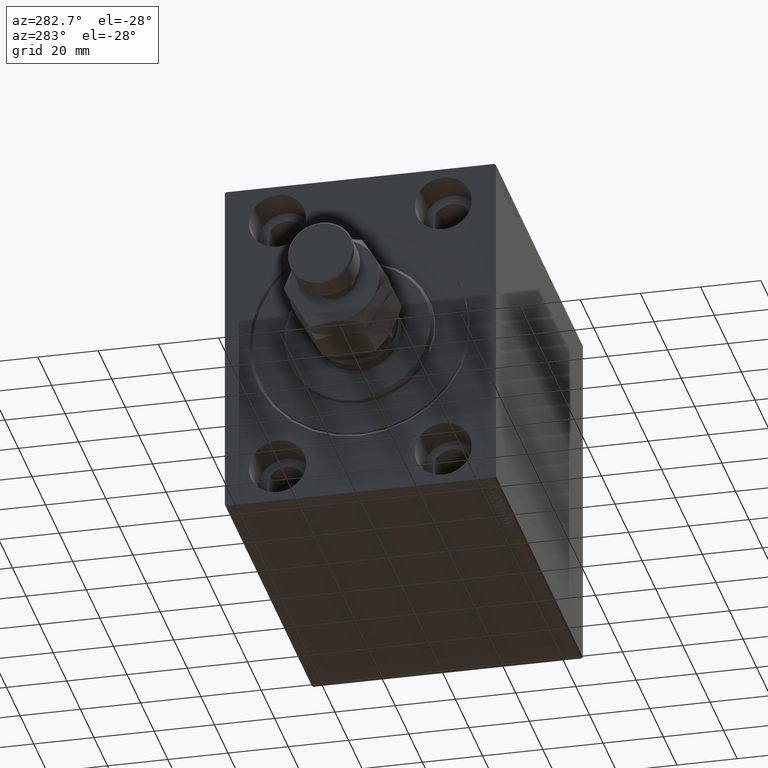
[diagram: clean part render]
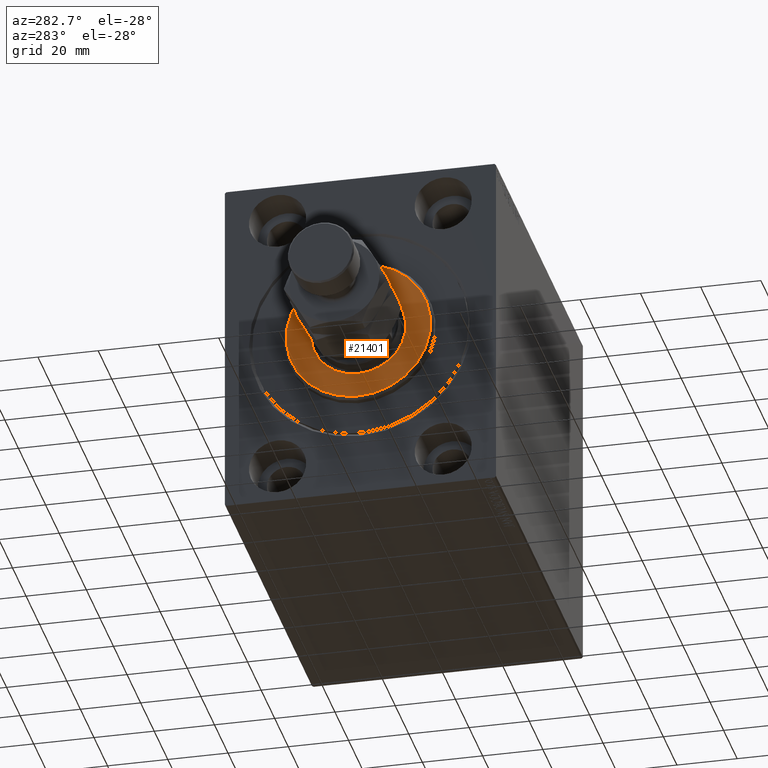
[diagram: same view with one face highlighted and labeled with its STEP entity id]
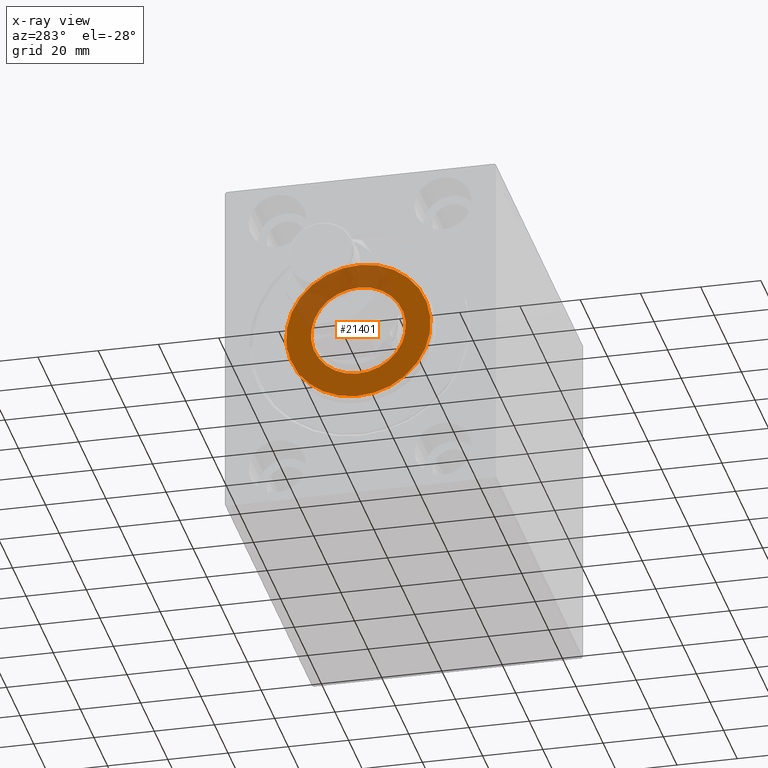
[diagram: x-ray of the same camera — body ghosted, the highlighted face saturated]
A machine part, auxiliary view. The second image highlights one B-rep face of the part: STEP entity #21401.
The next image is the same camera in x-ray: the body ghosted, the highlighted face saturated — about 29% of this face is hidden behind the body in this view.
In plain terms, the highlighted planar face has unit normal (-1, 0, 0).
Its self-contained STEP definition (entity closure, byte-faithful):
#455 = CARTESIAN_POINT ( 'NONE',  ( 3.000000000000000000, 3.000384657911015469E-15, -24.00000000000000711 ) ) ;
#3406 = DIRECTION ( 'NONE',  ( 1.000000000000000000, -0.000000000000000000, 0.000000000000000000 ) ) ;
#3465 = PLANE ( 'NONE',  #40771 ) ;
#4264 = VERTEX_POINT ( 'NONE', #5829 ) ;
#4680 = DIRECTION ( 'NONE',  ( 1.000000000000000000, -0.000000000000000000, 0.000000000000000000 ) ) ;
#5829 = CARTESIAN_POINT ( 'NONE',  ( 3.000000000000000000, 0.000000000000000000, 15.75000000000000000 ) ) ;
#8294 = DIRECTION ( 'NONE',  ( 0.000000000000000000, 0.000000000000000000, -1.000000000000000000 ) ) ;
#9593 = ORIENTED_EDGE ( 'NONE', *, *, #44008, .T. ) ;
#10828 = DIRECTION ( 'NONE',  ( 1.000000000000000000, -0.000000000000000000, 0.000000000000000000 ) ) ;
#11869 = AXIS2_PLACEMENT_3D ( 'NONE', #43285, #4680, #36600 ) ;
#12122 = VERTEX_POINT ( 'NONE', #38485 ) ;
#13760 = CARTESIAN_POINT ( 'NONE',  ( 3.000000000000000000, 0.000000000000000000, 0.000000000000000000 ) ) ;
#14288 = FACE_BOUND ( 'NONE', #29858, .T. ) ;
#14965 = CARTESIAN_POINT ( 'NONE',  ( 3.000000000000000000, 0.000000000000000000, 0.000000000000000000 ) ) ;
#17514 = CARTESIAN_POINT ( 'NONE',  ( 3.000000000000000000, 0.000000000000000000, 0.000000000000000000 ) ) ;
#19742 = EDGE_CURVE ( 'NONE', #21944, #12122, #29725, .T. ) ;
#20240 = DIRECTION ( 'NONE',  ( 0.000000000000000000, 0.000000000000000000, -1.000000000000000000 ) ) ;
#20614 = EDGE_LOOP ( 'NONE', ( #44332, #44930 ) ) ;
#21009 = AXIS2_PLACEMENT_3D ( 'NONE', #14965, #22326, #8294 ) ;
#21401 = ADVANCED_FACE ( 'NONE', ( #41848, #14288 ), #3465, .T. ) ;
#21427 = EDGE_CURVE ( 'NONE', #27394, #4264, #38586, .T. ) ;
#21944 = VERTEX_POINT ( 'NONE', #455 ) ;
#22326 = DIRECTION ( 'NONE',  ( -1.000000000000000000, 0.000000000000000000, -0.000000000000000000 ) ) ;
#23835 = CARTESIAN_POINT ( 'NONE',  ( 3.000000000000000000, 0.000000000000000000, 0.000000000000000000 ) ) ;
#24850 = DIRECTION ( 'NONE',  ( 0.000000000000000000, 0.000000000000000000, -1.000000000000000000 ) ) ;
#24972 = CARTESIAN_POINT ( 'NONE',  ( 3.000000000000000000, 1.928818708657080950E-15, -15.75000000000000000 ) ) ;
#27394 = VERTEX_POINT ( 'NONE', #24972 ) ;
#27726 = DIRECTION ( 'NONE',  ( -1.000000000000000000, 0.000000000000000000, -0.000000000000000000 ) ) ;
#28669 = ORIENTED_EDGE ( 'NONE', *, *, #21427, .T. ) ;
#29725 = CIRCLE ( 'NONE', #40742, 24.00000000000000711 ) ;
#29858 = EDGE_LOOP ( 'NONE', ( #9593, #28669 ) ) ;
#31814 = CIRCLE ( 'NONE', #38444, 15.75000000000000000 ) ;
#32441 = CIRCLE ( 'NONE', #11869, 24.00000000000000711 ) ;
#34390 = DIRECTION ( 'NONE',  ( 0.000000000000000000, 0.000000000000000000, -1.000000000000000000 ) ) ;
#35443 = EDGE_CURVE ( 'NONE', #12122, #21944, #32441, .T. ) ;
#36600 = DIRECTION ( 'NONE',  ( 0.000000000000000000, 0.000000000000000000, -1.000000000000000000 ) ) ;
#38444 = AXIS2_PLACEMENT_3D ( 'NONE', #23835, #27726, #34390 ) ;
#38485 = CARTESIAN_POINT ( 'NONE',  ( 3.000000000000000000, 0.000000000000000000, 24.00000000000000711 ) ) ;
#38586 = CIRCLE ( 'NONE', #21009, 15.75000000000000000 ) ;
#40742 = AXIS2_PLACEMENT_3D ( 'NONE', #13760, #3406, #20240 ) ;
#40771 = AXIS2_PLACEMENT_3D ( 'NONE', #17514, #10828, #24850 ) ;
#41848 = FACE_OUTER_BOUND ( 'NONE', #20614, .T. ) ;
#43285 = CARTESIAN_POINT ( 'NONE',  ( 3.000000000000000000, 0.000000000000000000, 0.000000000000000000 ) ) ;
#44008 = EDGE_CURVE ( 'NONE', #4264, #27394, #31814, .T. ) ;
#44332 = ORIENTED_EDGE ( 'NONE', *, *, #35443, .T. ) ;
#44930 = ORIENTED_EDGE ( 'NONE', *, *, #19742, .T. ) ;